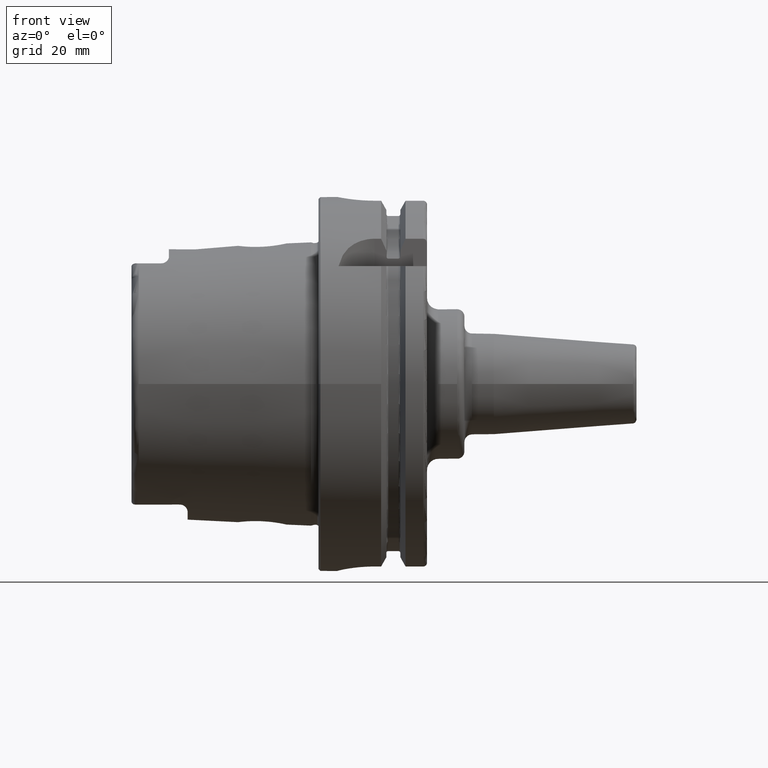
[diagram: clean part render]
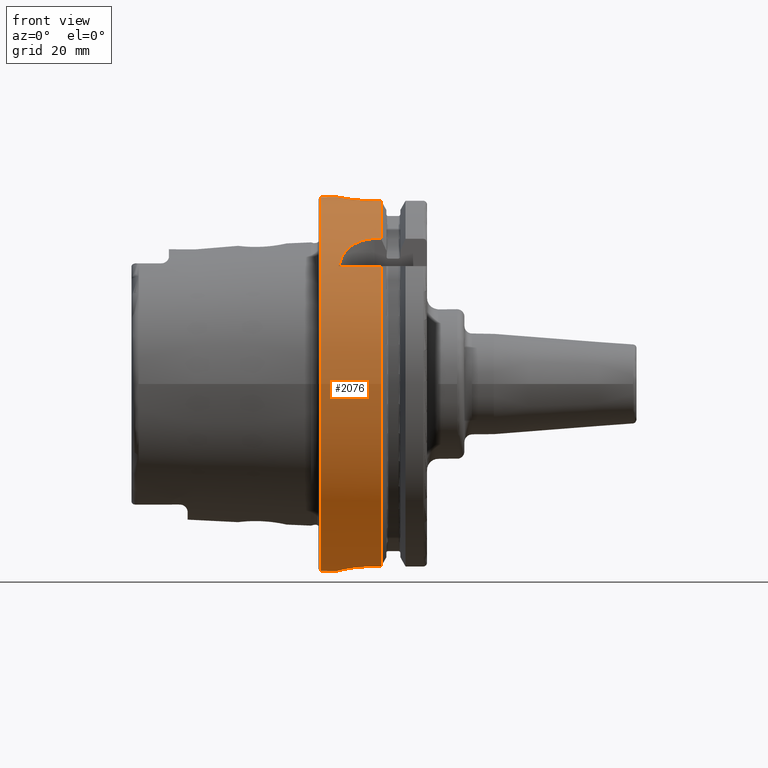
[diagram: same view with one face highlighted and labeled with its STEP entity id]
A machine part, front view. The second image highlights one B-rep face of the part: STEP entity #2076.
In plain terms, the highlighted cylindrical surface (bore or boss wall) has radius 50 mm, axis along (1, 0, 0).
Its self-contained STEP definition (entity closure, byte-faithful):
#56=B_SPLINE_CURVE_WITH_KNOTS('',3,(#3957,#3958,#3959,#3960,#3961,#3962,
#3963,#3964,#3965,#3966,#3967,#3968,#3969,#3970,#3971,#3972,#3973,#3974,
#3975,#3976,#3977,#3978,#3979,#3980,#3981,#3982),.UNSPECIFIED.,.F.,.F.,
(4,2,2,2,2,2,2,2,2,2,2,2,4),(0.,0.188478911015149,0.376957822030298,0.565436091508923,
0.753914360987547,0.942392630466172,1.1308708999448,1.31934981095995,1.50782872197509,
1.69630763299024,1.88478654400539,2.07326481348402,2.26174308296264),
 .UNSPECIFIED.);
#57=B_SPLINE_CURVE_WITH_KNOTS('',3,(#3983,#3984,#3985,#3986,#3987,#3988,
#3989,#3990,#3991,#3992),.UNSPECIFIED.,.F.,.F.,(4,2,2,2,4),(2.26174308296264,
2.45022135244127,2.63869962191989,2.82717853293504,3.01565744395019),
 .UNSPECIFIED.);
#58=B_SPLINE_CURVE_WITH_KNOTS('',3,(#3996,#3997,#3998,#3999,#4000,#4001,
#4002,#4003,#4004,#4005,#4006,#4007),.UNSPECIFIED.,.F.,.F.,(4,2,2,2,2,4),
(1.13213255574021,1.59216410027009,1.87572541272146,2.15928672517283,2.38471683342296,
2.61014694167308),.UNSPECIFIED.);
#65=B_SPLINE_CURVE_WITH_KNOTS('',3,(#4120,#4121,#4122,#4123,#4124,#4125,
#4126,#4127,#4128,#4129,#4130,#4131,#4132,#4133,#4134,#4135,#4136,#4137),
 .UNSPECIFIED.,.F.,.F.,(4,2,2,2,2,2,2,2,4),(0.,0.377795255890194,0.755590511780389,
1.13336459804459,1.51113868430879,1.88891277057299,2.26668685683718,2.64448211272738,
3.02227736861757),.UNSPECIFIED.);
#66=B_SPLINE_CURVE_WITH_KNOTS('',3,(#4145,#4146,#4147,#4148,#4149,#4150,
#4151,#4152,#4153,#4154),.UNSPECIFIED.,.F.,.F.,(4,2,2,2,4),(0.,0.377863193874929,
0.755726387749858,1.13417752669663,1.51262866564341),.UNSPECIFIED.);
#67=B_SPLINE_CURVE_WITH_KNOTS('',3,(#4158,#4159,#4160,#4161,#4162,#4163,
#4164,#4165,#4166,#4167),.UNSPECIFIED.,.F.,.F.,(4,2,2,2,4),(1.50996806152532,
1.8884192004721,2.26687033941887,2.6447335332938,3.02259672716873),
 .UNSPECIFIED.);
#94=FACE_BOUND('',#391,.T.);
#191=CYLINDRICAL_SURFACE('',#2293,50.);
#258=FACE_OUTER_BOUND('',#390,.T.);
#390=EDGE_LOOP('',(#1621,#1622,#1623,#1624,#1625,#1626,#1627,#1628,#1629,
#1630,#1631,#1632,#1633,#1634,#1635,#1636,#1637,#1638));
#391=EDGE_LOOP('',(#1639,#1640));
#517=LINE('',#4013,#624);
#523=LINE('',#4065,#630);
#528=LINE('',#4118,#635);
#529=LINE('',#4139,#636);
#530=LINE('',#4143,#637);
#531=LINE('',#4169,#638);
#532=LINE('',#4173,#639);
#624=VECTOR('',#2724,10.);
#630=VECTOR('',#2732,10.);
#635=VECTOR('',#2741,10.);
#636=VECTOR('',#2742,10.);
#637=VECTOR('',#2745,10.);
#638=VECTOR('',#2748,10.);
#639=VECTOR('',#2751,50.);
#750=CIRCLE('',#2294,50.);
#751=CIRCLE('',#2295,50.);
#752=CIRCLE('',#2296,50.);
#753=CIRCLE('',#2297,50.);
#754=CIRCLE('',#2298,50.);
#755=CIRCLE('',#2299,50.);
#933=VERTEX_POINT('',#3954);
#934=VERTEX_POINT('',#3956);
#935=VERTEX_POINT('',#3994);
#936=VERTEX_POINT('',#3995);
#938=VERTEX_POINT('',#4012);
#947=VERTEX_POINT('',#4064);
#956=VERTEX_POINT('',#4115);
#957=VERTEX_POINT('',#4117);
#958=VERTEX_POINT('',#4119);
#959=VERTEX_POINT('',#4138);
#960=VERTEX_POINT('',#4140);
#961=VERTEX_POINT('',#4142);
#962=VERTEX_POINT('',#4144);
#963=VERTEX_POINT('',#4155);
#964=VERTEX_POINT('',#4157);
#965=VERTEX_POINT('',#4168);
#966=VERTEX_POINT('',#4170);
#967=VERTEX_POINT('',#4172);
#1181=EDGE_CURVE('',#934,#933,#56,.T.);
#1182=EDGE_CURVE('',#933,#934,#57,.T.);
#1183=EDGE_CURVE('',#935,#936,#58,.T.);
#1186=EDGE_CURVE('',#936,#938,#517,.T.);
#1197=EDGE_CURVE('',#947,#935,#523,.T.);
#1207=EDGE_CURVE('',#956,#938,#750,.T.);
#1208=EDGE_CURVE('',#956,#957,#528,.T.);
#1209=EDGE_CURVE('',#957,#958,#65,.T.);
#1210=EDGE_CURVE('',#958,#959,#529,.T.);
#1211=EDGE_CURVE('',#960,#959,#751,.T.);
#1212=EDGE_CURVE('',#960,#961,#530,.T.);
#1213=EDGE_CURVE('',#961,#962,#66,.T.);
#1214=EDGE_CURVE('',#962,#963,#752,.T.);
#1215=EDGE_CURVE('',#963,#964,#67,.T.);
#1216=EDGE_CURVE('',#964,#965,#531,.T.);
#1217=EDGE_CURVE('',#966,#965,#753,.T.);
#1218=EDGE_CURVE('',#966,#967,#532,.T.);
#1219=EDGE_CURVE('',#967,#967,#754,.T.);
#1220=EDGE_CURVE('',#947,#966,#755,.T.);
#1621=ORIENTED_EDGE('',*,*,#1197,.T.);
#1622=ORIENTED_EDGE('',*,*,#1183,.T.);
#1623=ORIENTED_EDGE('',*,*,#1186,.T.);
#1624=ORIENTED_EDGE('',*,*,#1207,.F.);
#1625=ORIENTED_EDGE('',*,*,#1208,.T.);
#1626=ORIENTED_EDGE('',*,*,#1209,.T.);
#1627=ORIENTED_EDGE('',*,*,#1210,.T.);
#1628=ORIENTED_EDGE('',*,*,#1211,.F.);
#1629=ORIENTED_EDGE('',*,*,#1212,.T.);
#1630=ORIENTED_EDGE('',*,*,#1213,.T.);
#1631=ORIENTED_EDGE('',*,*,#1214,.T.);
#1632=ORIENTED_EDGE('',*,*,#1215,.T.);
#1633=ORIENTED_EDGE('',*,*,#1216,.T.);
#1634=ORIENTED_EDGE('',*,*,#1217,.F.);
#1635=ORIENTED_EDGE('',*,*,#1218,.T.);
#1636=ORIENTED_EDGE('',*,*,#1219,.T.);
#1637=ORIENTED_EDGE('',*,*,#1218,.F.);
#1638=ORIENTED_EDGE('',*,*,#1220,.F.);
#1639=ORIENTED_EDGE('',*,*,#1181,.T.);
#1640=ORIENTED_EDGE('',*,*,#1182,.T.);
#2076=ADVANCED_FACE('',(#258,#94),#191,.T.);
#2293=AXIS2_PLACEMENT_3D('',#4114,#2737,#2738);
#2294=AXIS2_PLACEMENT_3D('',#4116,#2739,#2740);
#2295=AXIS2_PLACEMENT_3D('',#4141,#2743,#2744);
#2296=AXIS2_PLACEMENT_3D('',#4156,#2746,#2747);
#2297=AXIS2_PLACEMENT_3D('',#4171,#2749,#2750);
#2298=AXIS2_PLACEMENT_3D('',#4174,#2752,#2753);
#2299=AXIS2_PLACEMENT_3D('',#4175,#2754,#2755);
#2724=DIRECTION('',(1.,0.,0.));
#2732=DIRECTION('',(-1.,0.,0.));
#2737=DIRECTION('center_axis',(1.,0.,0.));
#2738=DIRECTION('ref_axis',(0.,1.,0.));
#2739=DIRECTION('center_axis',(1.,0.,0.));
#2740=DIRECTION('ref_axis',(0.,0.,-1.));
#2741=DIRECTION('',(-1.,0.,0.));
#2742=DIRECTION('',(1.,0.,0.));
#2743=DIRECTION('center_axis',(1.,0.,0.));
#2744=DIRECTION('ref_axis',(0.,0.,-1.));
#2745=DIRECTION('',(-1.,0.,0.));
#2746=DIRECTION('center_axis',(-1.,0.,0.));
#2747=DIRECTION('ref_axis',(0.,1.,0.));
#2748=DIRECTION('',(1.,0.,0.));
#2749=DIRECTION('center_axis',(1.,0.,0.));
#2750=DIRECTION('ref_axis',(0.,0.,-1.));
#2751=DIRECTION('',(-1.,0.,0.));
#2752=DIRECTION('center_axis',(1.,0.,0.));
#2753=DIRECTION('ref_axis',(0.,0.,-1.));
#2754=DIRECTION('center_axis',(1.,0.,0.));
#2755=DIRECTION('ref_axis',(0.,0.,-1.));
#3954=CARTESIAN_POINT('',(12.,50.,-6.12323399573677E-16));
#3956=CARTESIAN_POINT('',(6.99999999999999,49.749371855331,5.));
#3957=CARTESIAN_POINT('Ctrl Pts',(6.99999999999999,49.749371855331,5.));
#3958=CARTESIAN_POINT('Ctrl Pts',(6.37173696328283,49.749371855331,5.));
#3959=CARTESIAN_POINT('Ctrl Pts',(5.70188570880885,49.7624993987098,4.87435544587055));
#3960=CARTESIAN_POINT('Ctrl Pts',(4.4701142477173,49.8098541153698,4.36395693611591));
#3961=CARTESIAN_POINT('Ctrl Pts',(3.90815809537484,49.8433908660961,3.97922590724033));
#3962=CARTESIAN_POINT('Ctrl Pts',(3.02077560297968,49.9062957431473,3.09184341484517));
#3963=CARTESIAN_POINT('Ctrl Pts',(2.63604339567929,49.9397591808605,2.52988660036719));
#3964=CARTESIAN_POINT('Ctrl Pts',(2.12564400622109,49.9869460568296,1.29811292154946));
#3965=CARTESIAN_POINT('Ctrl Pts',(1.99999999999999,50.,0.628260898262081));
#3966=CARTESIAN_POINT('Ctrl Pts',(1.99999999999999,50.,-0.628260898262082));
#3967=CARTESIAN_POINT('Ctrl Pts',(2.12564400622109,49.9869460568296,-1.29811292154946));
#3968=CARTESIAN_POINT('Ctrl Pts',(2.63604339567929,49.9397591808605,-2.52988660036719));
#3969=CARTESIAN_POINT('Ctrl Pts',(3.02077560297968,49.9062957431473,-3.09184341484517));
#3970=CARTESIAN_POINT('Ctrl Pts',(3.90815809537484,49.8433908660961,-3.97922590724033));
#3971=CARTESIAN_POINT('Ctrl Pts',(4.4701142477173,49.8098541153698,-4.36395693611591));
#3972=CARTESIAN_POINT('Ctrl Pts',(5.70188570880885,49.7624993987098,-4.87435544587055));
#3973=CARTESIAN_POINT('Ctrl Pts',(6.37173696328283,49.749371855331,-5.));
#3974=CARTESIAN_POINT('Ctrl Pts',(7.62826303671716,49.749371855331,-5.));
#3975=CARTESIAN_POINT('Ctrl Pts',(8.29811429119113,49.7624993987098,-4.87435544587055));
#3976=CARTESIAN_POINT('Ctrl Pts',(9.52988575228269,49.8098541153698,-4.36395693611591));
#3977=CARTESIAN_POINT('Ctrl Pts',(10.0918419046251,49.8433908660961,-3.97922590724033));
#3978=CARTESIAN_POINT('Ctrl Pts',(10.9792243970203,49.9062957431473,-3.09184341484517));
#3979=CARTESIAN_POINT('Ctrl Pts',(11.3639566043207,49.9397591808605,-2.52988660036719));
#3980=CARTESIAN_POINT('Ctrl Pts',(11.8743559937789,49.9869460568296,-1.29811292154947));
#3981=CARTESIAN_POINT('Ctrl Pts',(12.,50.,-0.628260898262083));
#3982=CARTESIAN_POINT('Ctrl Pts',(12.,50.,-5.55111512312578E-16));
#3983=CARTESIAN_POINT('Ctrl Pts',(12.,50.,-5.55111512312578E-16));
#3984=CARTESIAN_POINT('Ctrl Pts',(12.,50.,0.628260898262082));
#3985=CARTESIAN_POINT('Ctrl Pts',(11.8743559937789,49.9869460568296,1.29811292154946));
#3986=CARTESIAN_POINT('Ctrl Pts',(11.3639566043207,49.9397591808605,2.52988660036719));
#3987=CARTESIAN_POINT('Ctrl Pts',(10.9792243970203,49.9062957431473,3.09184341484517));
#3988=CARTESIAN_POINT('Ctrl Pts',(10.0918419046251,49.8433908660961,3.97922590724033));
#3989=CARTESIAN_POINT('Ctrl Pts',(9.52988575228269,49.8098541153698,4.36395693611591));
#3990=CARTESIAN_POINT('Ctrl Pts',(8.29811429119113,49.7624993987098,4.87435544587055));
#3991=CARTESIAN_POINT('Ctrl Pts',(7.62826303671716,49.749371855331,5.));
#3992=CARTESIAN_POINT('Ctrl Pts',(6.99999999999999,49.749371855331,5.));
#3994=CARTESIAN_POINT('',(5.36310214079494,-38.8297566307078,31.5));
#3995=CARTESIAN_POINT('',(15.,-31.5,38.8297566307078));
#3996=CARTESIAN_POINT('Ctrl Pts',(5.36310214079494,-38.8297566307078,31.5));
#3997=CARTESIAN_POINT('Ctrl Pts',(5.63795050776221,-37.8378299510303,32.722738779917));
#3998=CARTESIAN_POINT('Ctrl Pts',(6.08245260240086,-36.8264130955983,33.8486741193789));
#3999=CARTESIAN_POINT('Ctrl Pts',(7.14730321206235,-35.2667182945212,35.4540138707062));
#4000=CARTESIAN_POINT('Ctrl Pts',(7.68113760815893,-34.6306580359392,36.0741351437033));
#4001=CARTESIAN_POINT('Ctrl Pts',(8.97436758466638,-33.4722127660808,37.1515365058173));
#4002=CARTESIAN_POINT('Ctrl Pts',(9.73574998094174,-32.9521170857844,37.6088911783762));
#4003=CARTESIAN_POINT('Ctrl Pts',(11.1521999725134,-32.2432973482077,38.2170233500259));
#4004=CARTESIAN_POINT('Ctrl Pts',(11.8888981504148,-31.9629772872452,38.4503075998006));
#4005=CARTESIAN_POINT('Ctrl Pts',(13.4369856471743,-31.5908755949743,38.7566077888176));
#4006=CARTESIAN_POINT('Ctrl Pts',(14.2485663058329,-31.5,38.8297566307078));
#4007=CARTESIAN_POINT('Ctrl Pts',(15.,-31.5,38.8297566307078));
#4012=CARTESIAN_POINT('',(16.7379709790786,-31.5,38.8297566307078));
#4013=CARTESIAN_POINT('',(8.61898548953931,-31.5,38.8297566307078));
#4064=CARTESIAN_POINT('',(16.7379709790786,-38.8297566307078,31.5));
#4065=CARTESIAN_POINT('',(8.61898548953931,-38.8297566307078,31.5));
#4114=CARTESIAN_POINT('Origin',(8.61898548953931,0.,0.));
#4115=CARTESIAN_POINT('',(16.7379709790786,-10.,48.9897948556636));
#4116=CARTESIAN_POINT('Origin',(16.7379709790786,0.,0.));
#4117=CARTESIAN_POINT('',(15.,-10.,48.9897948556636));
#4118=CARTESIAN_POINT('',(8.61898548953931,-10.,48.9897948556636));
#4119=CARTESIAN_POINT('',(15.,10.,48.9897948556636));
#4120=CARTESIAN_POINT('Ctrl Pts',(15.,-10.,48.9897948556636));
#4121=CARTESIAN_POINT('Ctrl Pts',(13.740682480366,-10.,48.9897948556636));
#4122=CARTESIAN_POINT('Ctrl Pts',(12.3998222283811,-9.74762796248614,49.0433876618447));
#4123=CARTESIAN_POINT('Ctrl Pts',(9.93707994969945,-8.72605417648382,49.2354150792771));
#4124=CARTESIAN_POINT('Ctrl Pts',(8.81489539818993,-7.95703102192089,49.3709085101933));
#4125=CARTESIAN_POINT('Ctrl Pts',(7.04301862271998,-6.18515424645094,49.6240337638318));
#4126=CARTESIAN_POINT('Ctrl Pts',(6.27395658455242,-5.06294861197626,49.7583347151863));
#4127=CARTESIAN_POINT('Ctrl Pts',(5.25235457764165,-2.60013306081865,49.9476188647081));
#4128=CARTESIAN_POINT('Ctrl Pts',(4.99999999999999,-1.259246954214,50.));
#4129=CARTESIAN_POINT('Ctrl Pts',(4.99999999999999,1.259246954214,50.));
#4130=CARTESIAN_POINT('Ctrl Pts',(5.25235457764165,2.60013306081865,49.9476188647081));
#4131=CARTESIAN_POINT('Ctrl Pts',(6.27395658455242,5.06294861197626,49.7583347151863));
#4132=CARTESIAN_POINT('Ctrl Pts',(7.04301862271998,6.18515424645094,49.6240337638318));
#4133=CARTESIAN_POINT('Ctrl Pts',(8.81489539818993,7.95703102192089,49.3709085101933));
#4134=CARTESIAN_POINT('Ctrl Pts',(9.93707994969945,8.72605417648382,49.2354150792771));
#4135=CARTESIAN_POINT('Ctrl Pts',(12.3998222283811,9.74762796248614,49.0433876618447));
#4136=CARTESIAN_POINT('Ctrl Pts',(13.740682480366,10.,48.9897948556636));
#4137=CARTESIAN_POINT('Ctrl Pts',(15.,10.,48.9897948556636));
#4138=CARTESIAN_POINT('',(16.7379709790786,10.,48.9897948556636));
#4139=CARTESIAN_POINT('',(8.61898548953931,10.,48.9897948556636));
#4140=CARTESIAN_POINT('',(16.7379709790786,11.,-48.7749935930288));
#4141=CARTESIAN_POINT('Origin',(16.7379709790786,0.,0.));
#4142=CARTESIAN_POINT('',(15.,11.,-48.7749935930288));
#4143=CARTESIAN_POINT('',(8.61898548953931,11.,-48.7749935930288));
#4144=CARTESIAN_POINT('',(4.99999999999999,0.999999999999997,-49.9899989998));
#4145=CARTESIAN_POINT('Ctrl Pts',(15.,11.,-48.7749935930288));
#4146=CARTESIAN_POINT('Ctrl Pts',(13.7404560204169,11.,-48.7749935930288));
#4147=CARTESIAN_POINT('Ctrl Pts',(12.3998213084084,10.7475295248871,-48.8340306344483));
#4148=CARTESIAN_POINT('Ctrl Pts',(9.9383361278342,9.72667325975831,-49.0475663096823));
#4149=CARTESIAN_POINT('Ctrl Pts',(8.81713821454868,8.95850056252305,-49.1990678796225));
#4150=CARTESIAN_POINT('Ctrl Pts',(7.04551978193545,7.18842719108522,-49.4887060645896));
#4151=CARTESIAN_POINT('Ctrl Pts',(6.27594389465425,6.06650925178,-49.6460359942126));
#4152=CARTESIAN_POINT('Ctrl Pts',(5.25307325920197,3.60309260864685,-49.8853600567865));
#4153=CARTESIAN_POINT('Ctrl Pts',(4.99999999999999,2.26125147049483,-49.9647689238702));
#4154=CARTESIAN_POINT('Ctrl Pts',(4.99999999999999,1.,-49.9899989998));
#4155=CARTESIAN_POINT('',(4.99999999999999,-1.00000000000001,-49.9899989998));
#4156=CARTESIAN_POINT('Origin',(4.99999999999999,0.,0.));
#4157=CARTESIAN_POINT('',(15.,-11.,-48.7749935930288));
#4158=CARTESIAN_POINT('Ctrl Pts',(4.99999999999999,-1.,-49.9899989998));
#4159=CARTESIAN_POINT('Ctrl Pts',(4.99999999999999,-2.26125147049483,-49.9647689238702));
#4160=CARTESIAN_POINT('Ctrl Pts',(5.25307325920197,-3.60309260864686,-49.8853600567865));
#4161=CARTESIAN_POINT('Ctrl Pts',(6.27594389465425,-6.06650925178001,-49.6460359942126));
#4162=CARTESIAN_POINT('Ctrl Pts',(7.04551978193545,-7.18842719108522,-49.4887060645896));
#4163=CARTESIAN_POINT('Ctrl Pts',(8.81713821454868,-8.95850056252306,-49.1990678796225));
#4164=CARTESIAN_POINT('Ctrl Pts',(9.9383361278342,-9.72667325975831,-49.0475663096823));
#4165=CARTESIAN_POINT('Ctrl Pts',(12.3998213084084,-10.7475295248871,-48.8340306344483));
#4166=CARTESIAN_POINT('Ctrl Pts',(13.7404560204169,-11.,-48.7749935930288));
#4167=CARTESIAN_POINT('Ctrl Pts',(15.,-11.,-48.7749935930288));
#4168=CARTESIAN_POINT('',(16.7379709790786,-11.,-48.7749935930288));
#4169=CARTESIAN_POINT('',(8.61898548953931,-11.,-48.7749935930288));
#4170=CARTESIAN_POINT('',(16.7379709790786,-50.,-6.12323399573677E-15));
#4171=CARTESIAN_POINT('Origin',(16.7379709790786,0.,0.));
#4172=CARTESIAN_POINT('',(0.5,-50.,-6.12323399573677E-15));
#4173=CARTESIAN_POINT('',(8.61898548953931,-50.,-6.12323399573677E-15));
#4174=CARTESIAN_POINT('Origin',(0.5,0.,0.));
#4175=CARTESIAN_POINT('Origin',(16.7379709790786,0.,0.));